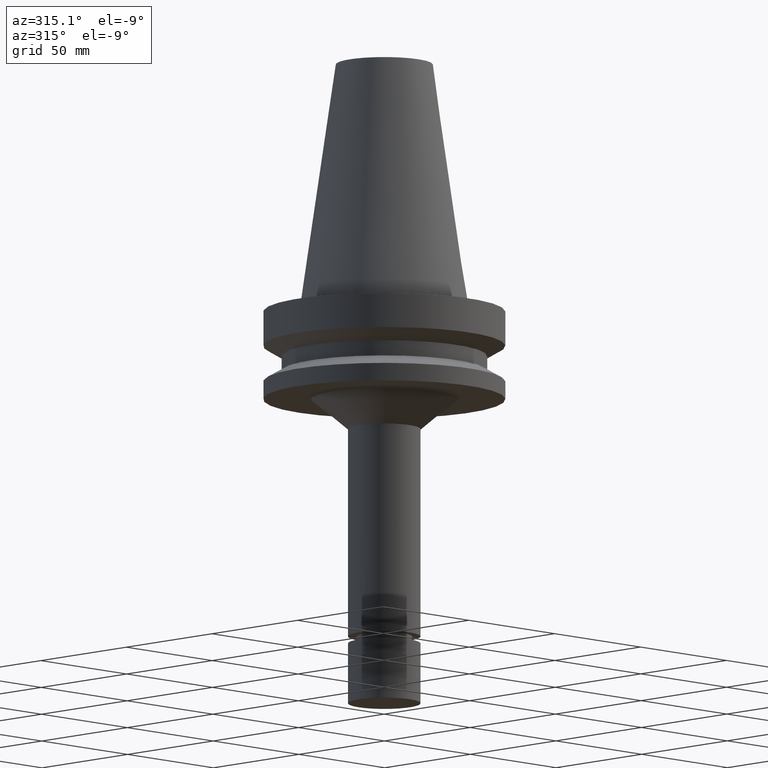
[diagram: clean part render]
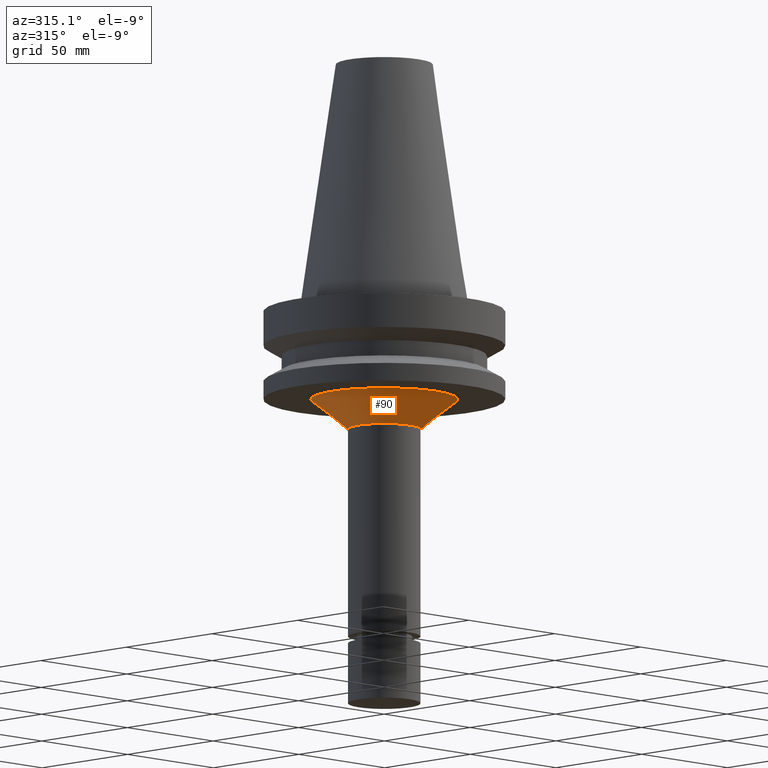
[diagram: same view with one face highlighted and labeled with its STEP entity id]
A machine part, auxiliary view. The second image highlights one B-rep face of the part: STEP entity #90.
In plain terms, the highlighted conical surface has half-angle 50.945 deg.
Its self-contained STEP definition (entity closure, byte-faithful):
#90=ADVANCED_FACE('Unnamed[1]',(#225,#226),#227,.T.);
#137=EDGE_CURVE('Unnamed[1]',#297,#297,#298,.T.);
#160=EDGE_CURVE('Unnamed[1]',#332,#332,#333,.T.);
#225=FACE_BOUND('',#406,.T.);
#226=FACE_BOUND('',#407,.T.);
#227=CONICAL_SURFACE('',#408,22.6818898842099,0.889162048815194);
#297=VERTEX_POINT('',#497);
#298=CIRCLE('',#498,30.3637797684197);
#332=VERTEX_POINT('',#540);
#333=CIRCLE('',#541,15.0000000000001);
#406=EDGE_LOOP('',(#608));
#407=EDGE_LOOP('',(#609));
#408=AXIS2_PLACEMENT_3D('',#610,#611,#612);
#497=CARTESIAN_POINT('',(2.32682891837996E-015,30.3637797684197,-37.9999999999998));
#498=AXIS2_PLACEMENT_3D('',#690,#691,#692);
#540=CARTESIAN_POINT('',(3.09013157343733E-015,15.0000000000001,-50.4656783586712));
#541=AXIS2_PLACEMENT_3D('',#727,#728,#729);
#608=ORIENTED_EDGE('',*,*,#137,.F.);
#609=ORIENTED_EDGE('',*,*,#160,.T.);
#610=CARTESIAN_POINT('',(2.70848024590864E-015,1.70138329509282E-014,-44.2328391793355));
#611=DIRECTION('',(-6.12323399573677E-017,-2.72265846766188E-017,1.0));
#612=DIRECTION('',(-6.49430021956628E-033,1.0,2.72265846766188E-017));
#690=CARTESIAN_POINT('',(2.32682891837996E-015,1.68441340272361E-014,-37.9999999999999));
#691=DIRECTION('',(-6.12323399573677E-017,-2.72265846766908E-017,1.0));
#692=DIRECTION('',(-6.49430021956872E-033,1.0,2.72265846766908E-017));
#727=CARTESIAN_POINT('',(3.09013157343733E-015,1.71835318746203E-014,-50.4656783586712));
#728=DIRECTION('',(-6.12323399573677E-017,-2.72265846766884E-017,1.0));
#729=DIRECTION('',(-6.4943002195733E-033,1.0,2.72265846766884E-017));